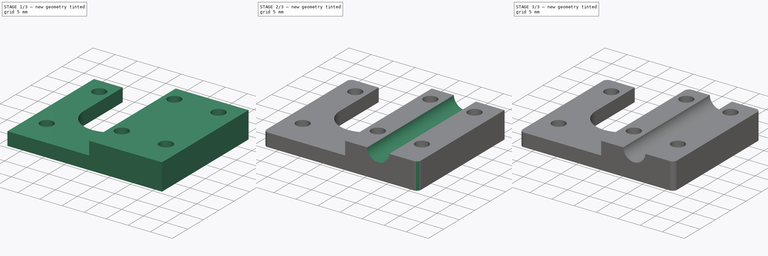
[diagram: build sequence overview — one tinted view per stage of 3, left to right]
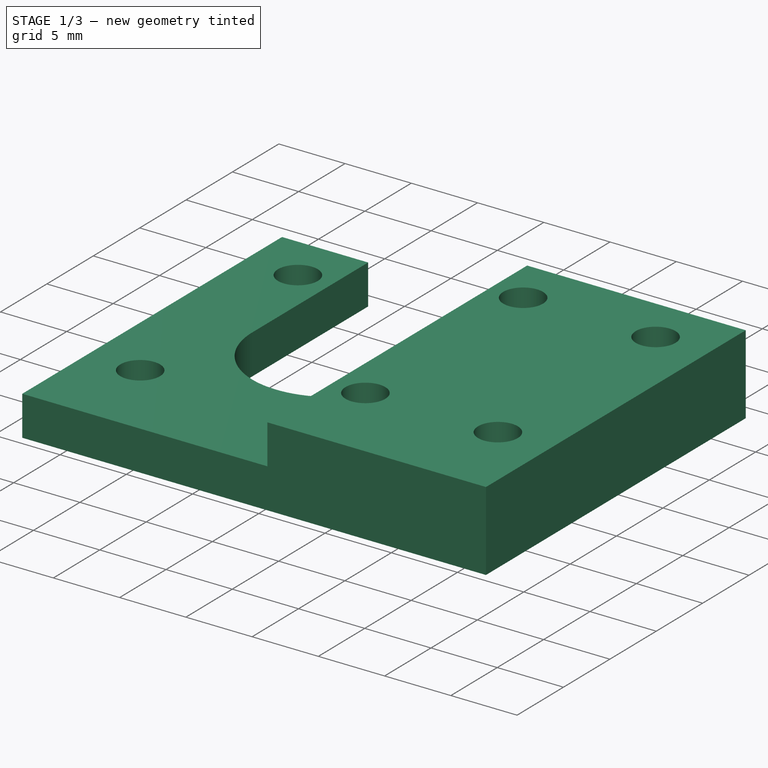
[diagram: stage 1 of 3 — iso view after this stage's code; geometry added in this stage tinted green]
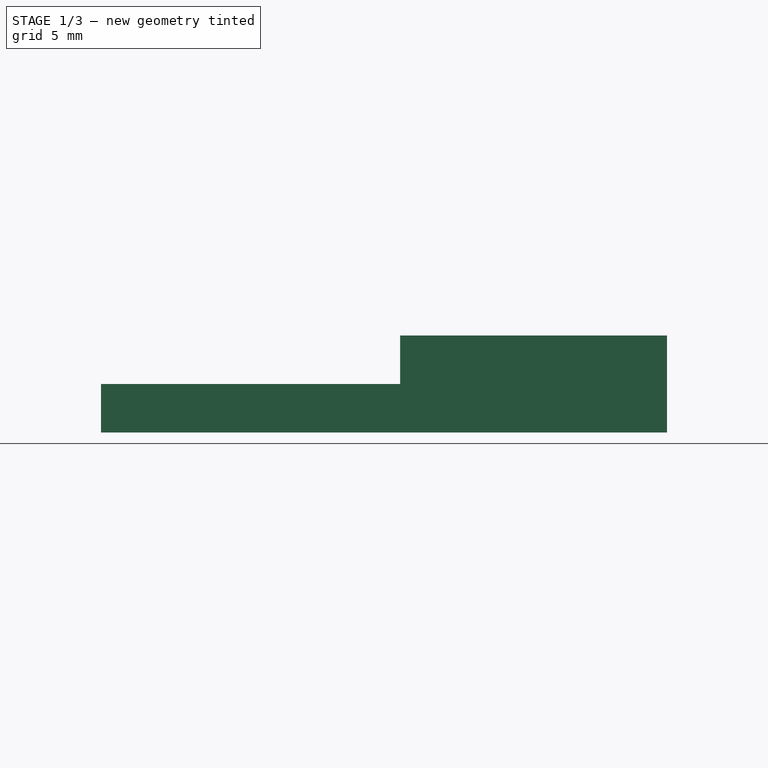
[diagram: stage 1 of 3 — front view after this stage's code; geometry added in this stage tinted green]
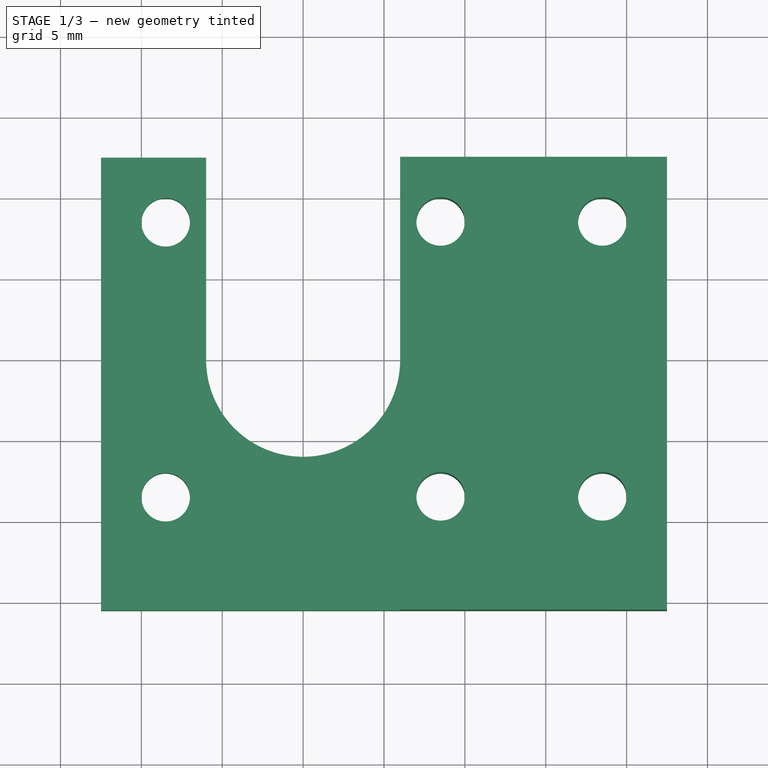
[diagram: stage 1 of 3 — top view after this stage's code; geometry added in this stage tinted green]
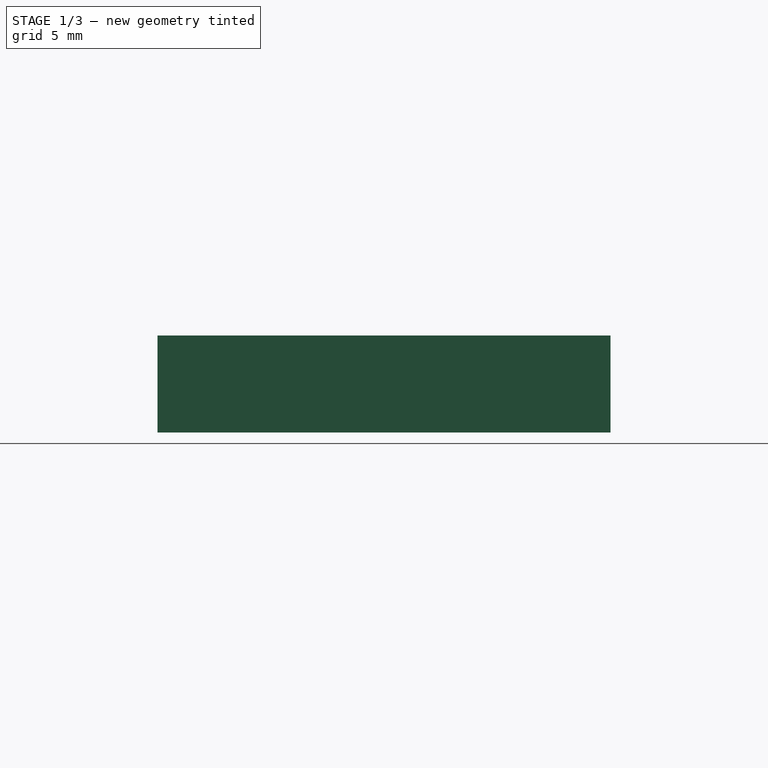
[diagram: stage 1 of 3 — right view after this stage's code; geometry added in this stage tinted green]
FCSTD DOCUMENT  (FreeCAD 0.19R24276 (Git))
Label: Servo_knife_opora_down
License: All rights reserved
LicenseURL: http://en.wikipedia.org/wiki/All_rights_reserved
objects: PartDesign::Fillet×4, Sketcher::SketchObject×3, PartDesign::Pad×2, PartDesign::Pocket×1, PartDesign::Body×1
note: 18 computed .brp shape members not serialized (recipe doc carries the construction recipe); baked Part::Feature solids carry a one-line shape summary decoded from their .brp

FEATURE [Sketcher::SketchObject] Sketch
  FullyConstrained = false
  MapMode = 5
  Support = -> [XY_Plane]
  sketch-geometry (34):
    g0: LineSegment StartX=-12.5 StartY=12.5 StartZ=0 EndX=12.5 EndY=12.5 EndZ=0
    g1: LineSegment StartX=12.5 StartY=12.5 StartZ=0 EndX=12.5 EndY=-12.5 EndZ=0
    g2: LineSegment StartX=12.5 StartY=-12.5 StartZ=0 EndX=-12.5 EndY=-12.5 EndZ=0
    g3: LineSegment StartX=-12.5 StartY=-12.5 StartZ=0 EndX=-12.5 EndY=12.5 EndZ=0
    g4: LineSegment StartX=8.5 StartY=8.5 StartZ=0 EndX=-8.5 EndY=8.5 EndZ=0
    g5: LineSegment StartX=-8.5 StartY=8.5 StartZ=0 EndX=-8.5 EndY=-8.5 EndZ=0
    g6: LineSegment StartX=-8.5 StartY=-8.5 StartZ=0 EndX=8.5 EndY=-8.5 EndZ=0
    g7: LineSegment StartX=8.5 StartY=-8.5 StartZ=0 EndX=8.5 EndY=8.5 EndZ=0
    g8: Circle CenterX=0 CenterY=0 CenterZ=0 NormalX=0 NormalY=0 NormalZ=1 AngleXU=0 Radius=12.0208
    g9: Circle CenterX=-8.5 CenterY=-8.5 CenterZ=0 NormalX=0 NormalY=0 NormalZ=1 AngleXU=0 Radius=1.5
    g10: Circle CenterX=8.5 CenterY=-8.5 CenterZ=0 NormalX=0 NormalY=0 NormalZ=1 AngleXU=0 Radius=1.5
    g11: Circle CenterX=-8.5 CenterY=8.5 CenterZ=0 NormalX=0 NormalY=0 NormalZ=1 AngleXU=0 Radius=1.5
    g12: Circle CenterX=8.5 CenterY=8.5 CenterZ=0 NormalX=0 NormalY=0 NormalZ=1 AngleXU=0 Radius=1.5
    g13: LineSegment StartX=9 StartY=29.1309 StartZ=0 EndX=9 EndY=-23.5772 EndZ=0
    g14: Circle CenterX=0 CenterY=0 CenterZ=0 NormalX=0 NormalY=0 NormalZ=1 AngleXU=0 Radius=4
    g15: ArcOfCircle CenterX=0 CenterY=0 CenterZ=0 NormalX=0 NormalY=0 NormalZ=1 AngleXU=0 Radius=6 StartAngle=3.14159 EndAngle=6.28319
    g16: LineSegment StartX=12.5 StartY=-12.5 StartZ=0 EndX=22.5 EndY=-12.5 EndZ=0
    g17: LineSegment StartX=22.5 StartY=-12.5 StartZ=0 EndX=22.5 EndY=12.5 EndZ=0
    g18: LineSegment StartX=12.5 StartY=12.5 StartZ=0 EndX=22.5 EndY=12.5 EndZ=0
    g19: LineSegment StartX=-12.5 StartY=-12.5 StartZ=0 EndX=22.5 EndY=-12.5 EndZ=0
    g20: LineSegment StartX=6 StartY=-1.5e-15 StartZ=0 EndX=6 EndY=12.5 EndZ=0
    g21: LineSegment StartX=6 StartY=12.5 StartZ=0 EndX=22.5 EndY=12.5 EndZ=0
    g22: LineSegment StartX=-6 StartY=12.5 StartZ=0 EndX=-12.5 EndY=12.5 EndZ=0
    g23: LineSegment StartX=0 StartY=-1.5e-15 StartZ=0 EndX=6 EndY=-1.5e-15 EndZ=0
    g24: LineSegment StartX=0 StartY=-1.5e-15 StartZ=0 EndX=-6 EndY=-1.5e-15 EndZ=0
    g25: LineSegment StartX=-6 StartY=12.5 StartZ=0 EndX=-6 EndY=-1.8e-15 EndZ=0
    g26: LineSegment StartX=-12.5 StartY=-12.5 StartZ=0 EndX=-12.5 EndY=-15.5 EndZ=0
    g27: LineSegment StartX=-12.5 StartY=-15.5 StartZ=0 EndX=22.5 EndY=-15.5 EndZ=0
    g28: LineSegment StartX=22.5 StartY=-12.5 StartZ=0 EndX=22.5 EndY=-15.5 EndZ=0
    g29: LineSegment StartX=-12.5 StartY=12.5 StartZ=0 EndX=-12.5 EndY=-15.5 EndZ=0
    g30: LineSegment StartX=22.5 StartY=12.5 StartZ=0 EndX=22.5 EndY=-15.5 EndZ=0
    g31: LineSegment StartX=-12.5 StartY=-15.5 StartZ=0 EndX=22.5 EndY=-15.5 EndZ=0
    g32: Circle CenterX=18.5 CenterY=8.5 CenterZ=0 NormalX=0 NormalY=0 NormalZ=1 AngleXU=0 Radius=1.5
    g33: Circle CenterX=18.5 CenterY=-8.5 CenterZ=0 NormalX=0 NormalY=0 NormalZ=1 AngleXU=0 Radius=1.5
  constraints (85):
    c: Coincident(g0,g1)
    c: Coincident(g1,g2)
    c: Coincident(g2,g3)
    c: Coincident(g3,g0)
    c: Horizontal(g0)
    c: Horizontal(g2)
    c: Vertical(g1)
    c: Vertical(g3)
    c: DistanceX(g0,g0) = 25
    c: Equal(g3,g0)
    c: Symmetric(g0,g1,g-1)
    c: Coincident(g4,g5)
    c: Coincident(g5,g6)
    c: Coincident(g6,g7)
    c: Coincident(g7,g4)
    c: Equal(g4,g5)
    c: Equal(g4,g6)
    c: Equal(g4,g7)
    c: PointOnObject(g4,g8)
    c: PointOnObject(g5,g8)
    c: PointOnObject(g6,g8)
    c: PointOnObject(g7,g8)
    c: Coincident(g8,g-1)
    c: Horizontal(g4)
    c: DistanceX(g6,g6) = 17
    c: Coincident(g9,g5)
    c: Coincident(g10,g6)
    c: Coincident(g11,g4)
    c: Coincident(g12,g4)
    c: Diameter(g12) = 3
    c: Equal(g12,g10)
    c: Equal(g12,g9)
    c: Equal(g12,g11)
    c: Vertical(g13)
    c: DistanceX(g-1,g13) = 9
    c: Coincident(g14,g-1)
    c: Diameter(g14) = 8
    c: Coincident(g15,g-1)
    c: Diameter(g15) = 12
    c: Coincident(g16,g1)
    c: Horizontal(g16)
    c: Coincident(g17,g16)
    c: Vertical(g17)
    c: Coincident(g18,g0)
    c: Horizontal(g18)
    c: Coincident(g17,g18)
    c: DistanceX(g16,g16) = 10
    c: Coincident(g19,g2)
    c: Vertical(g20)
    c: PointOnObject(g20,g0)
    c: PointOnObject(g22,g0)
    c: Coincident(g21,g20)
    c: Coincident(g22,g0)
    c: Coincident(g23,g-1)
    c: Horizontal(g23)
    c: Coincident(g20,g23)
    c: Coincident(g24,g23)
    c: Horizontal(g24)
    c: PointOnObject(g24,g15)
    c: Coincident(g25,g22)
    c: Coincident(g25,g24)
    c: Tangent(g15,g25) = -1.5708
    c: Coincident(g15,g20)
    c: Coincident(g26,g19)
    c: Vertical(g26)
    c: Coincident(g27,g26)
    c: Horizontal(g27)
    c: Coincident(g28,g19)
    c: Coincident(g28,g27)
    c: Vertical(g28)
    c: DistanceY(g28,g28) = 3
    c: Coincident(g29,g22)
    c: Coincident(g30,g21)
    c: Coincident(g30,g27)
    c: Coincident(g29,g26)
    c: Coincident(g19,g16)
    c: Coincident(g21,g17)
    c: Coincident(g31,g29)
    c: Coincident(g31,g30)
    c: Horizontal(g10,g33)
    c: Horizontal(g12,g32)
    c: Vertical(g33,g32)
    c: Equal(g12,g32)
    c: Equal(g32,g33)
    c: DistanceX(g33,g16) = 4
FEATURE [Sketcher::SketchObject] Sketch001
  FullyConstrained = false
  MapMode = 5
  Placement = pos=(0,0,3) rot=(0,0,1;0rad)
  sketch-geometry (13):
    g0: LineSegment StartX=11 StartY=13.562 StartZ=0 EndX=16 EndY=13.562 EndZ=0
    g1: LineSegment StartX=16 StartY=13.562 StartZ=0 EndX=16 EndY=-15.8235 EndZ=0
    g2: LineSegment StartX=16 StartY=-15.8235 StartZ=0 EndX=11 EndY=-15.8235 EndZ=0
    g3: LineSegment StartX=11 StartY=-15.8235 StartZ=0 EndX=11 EndY=13.562 EndZ=0
    g4: LineSegment StartX=13.5 StartY=13.562 StartZ=0 EndX=13.5 EndY=-18.9488 EndZ=0
    g5: LineSegment StartX=6 StartY=12.5 StartZ=0 EndX=22.5 EndY=12.5 EndZ=0
    g6: LineSegment StartX=22.5 StartY=12.5 StartZ=0 EndX=22.5 EndY=-15.5 EndZ=0
    g7: LineSegment StartX=22.5 StartY=-15.5 StartZ=0 EndX=6 EndY=-15.5 EndZ=0
    g8: LineSegment StartX=6 StartY=-15.5 StartZ=0 EndX=6 EndY=12.5 EndZ=0
    g9: Circle CenterX=8.5 CenterY=8.5 CenterZ=0 NormalX=0 NormalY=0 NormalZ=1 AngleXU=0 Radius=1.5
    g10: Circle CenterX=18.5 CenterY=8.5 CenterZ=0 NormalX=0 NormalY=0 NormalZ=1 AngleXU=0 Radius=1.5
    g11: Circle CenterX=18.5 CenterY=-8.5 CenterZ=0 NormalX=0 NormalY=0 NormalZ=1 AngleXU=0 Radius=1.5
    g12: Circle CenterX=8.5 CenterY=-8.5 CenterZ=0 NormalX=0 NormalY=0 NormalZ=1 AngleXU=0 Radius=1.5
  constraints (36):
    c: Coincident(g0,g1)
    c: Coincident(g1,g2)
    c: Coincident(g2,g3)
    c: Coincident(g3,g0)
    c: Horizontal(g0)
    c: Horizontal(g2)
    c: Vertical(g1)
    c: Vertical(g3)
    c: Vertical(g4)
    c: Symmetric(g0,g0,g4)
    c: DistanceX(g0,g0) = 5
    c: DistanceX(g-1,g4) = 13.5
    c: Coincident(g5,g6)
    c: Coincident(g6,g7)
    c: Coincident(g7,g8)
    c: Coincident(g8,g5)
    c: Horizontal(g5)
    c: Horizontal(g7)
    c: Vertical(g6)
    c: Vertical(g8)
    c: DistanceX(g-1,g7) = 6
    c: DistanceX(g-1,g5) = 22.5
    c: DistanceY(g6,g6) = 28
    c: DistanceY(g-1,g5) = 12.5
    c: Horizontal(g12,g11)
    c: Horizontal(g9,g10)
    c: Vertical(g9,g12)
    c: Vertical(g10,g11)
    c: Equal(g9,g10)
    c: Equal(g10,g11)
    c: Equal(g11,g12)
    c: Diameter(g11) = 3
    c: DistanceX(g-1,g9) = 8.5
    c: DistanceX(g9,g10) = 10
    c: DistanceY(g9,g5) = 4
    c: DistanceY(g12,g9) = 17
FEATURE [PartDesign::Pad] Pad
  Direction = (1,1,1)
  Length = 3
  Length2 = 100
  Profile = -> Sketch
  Type = 0
FEATURE [PartDesign::Pad] Pad001
  BaseFeature = -> Pad
  Direction = (1,1,1)
  Length = 3
  Length2 = 100
  Profile = -> Sketch001
  Type = 0
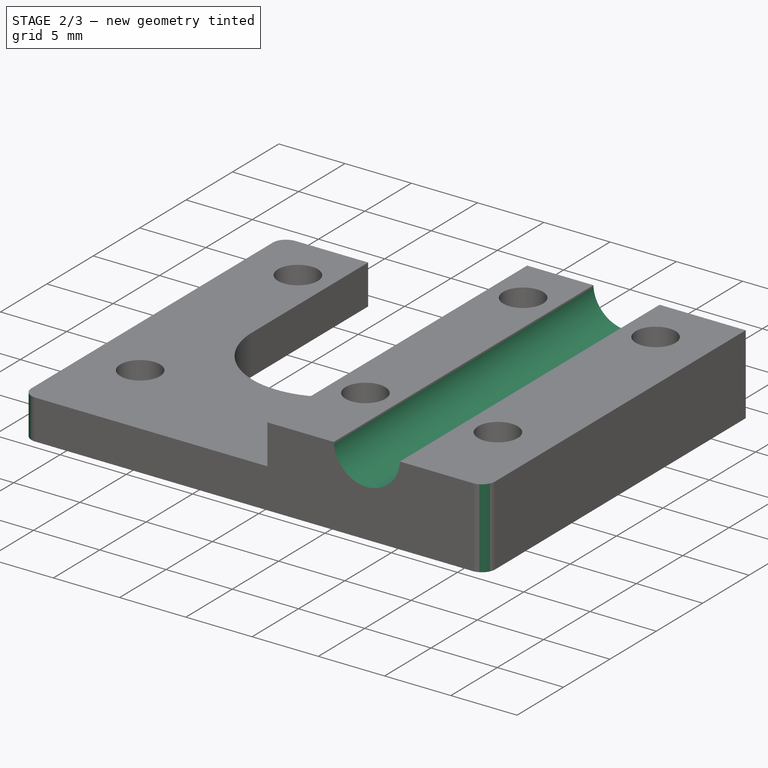
[diagram: stage 2 of 3 — iso view after this stage's code; geometry added in this stage tinted green]
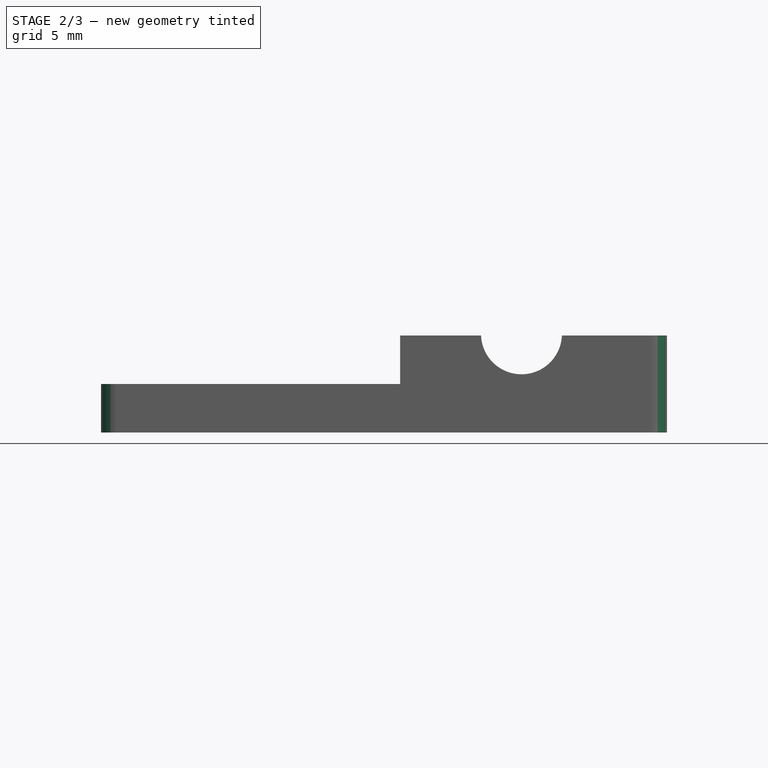
[diagram: stage 2 of 3 — front view after this stage's code; geometry added in this stage tinted green]
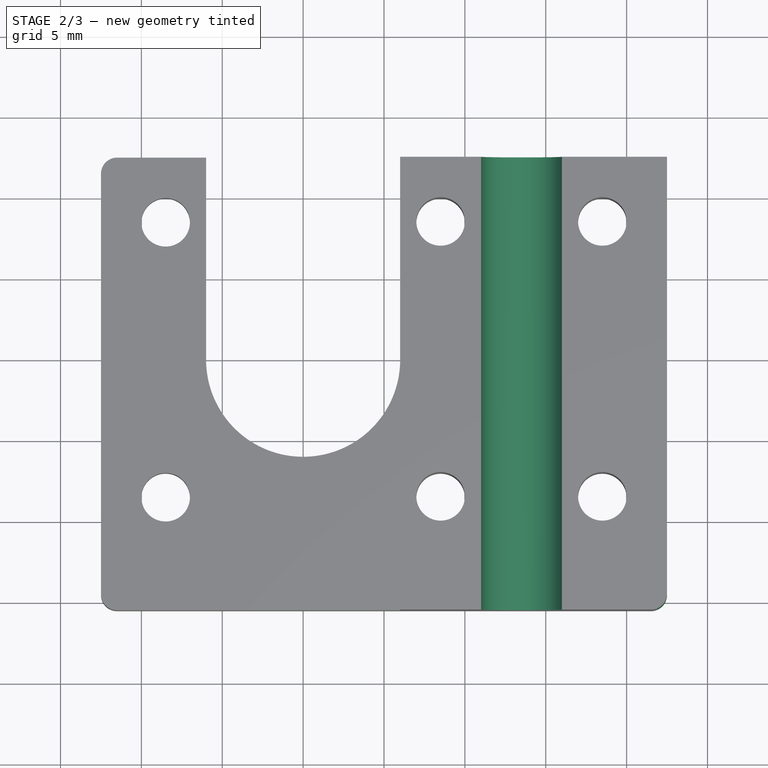
[diagram: stage 2 of 3 — top view after this stage's code; geometry added in this stage tinted green]
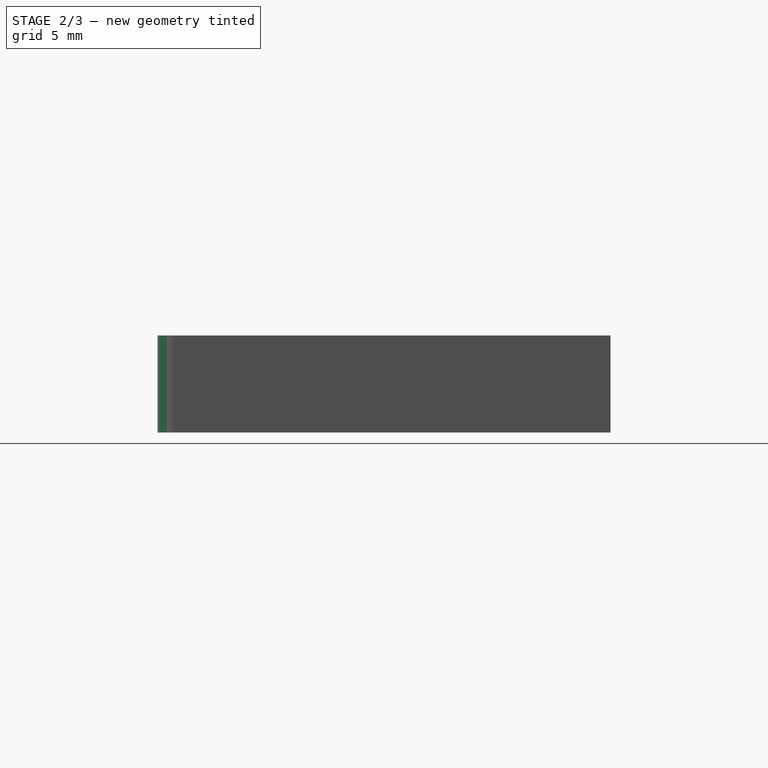
[diagram: stage 2 of 3 — right view after this stage's code; geometry added in this stage tinted green]
FEATURE [Sketcher::SketchObject] Sketch002
  FullyConstrained = false
  MapMode = 5
  Placement = pos=(0,-15.5,0) rot=(1,0,0;1.5708rad)
  Support = -> [Pad001]
  sketch-geometry (2):
    g0: LineSegment StartX=13.5 StartY=6.1 StartZ=0 EndX=13.5 EndY=22.0259 EndZ=0
    g1: Circle CenterX=13.5 CenterY=6.1 CenterZ=0 NormalX=0 NormalY=0 NormalZ=1 AngleXU=0 Radius=2.5
  constraints (5):
    c: Vertical(g0)
    c: DistanceX(g-1,g0) = 13.5
    c: Coincident(g1,g0)
    c: Diameter(g1) = 5
    c: DistanceY(g-1,g0) = 6.1
FEATURE [PartDesign::Pocket] Pocket
  BaseFeature = -> Pad001
  Length = 5
  Length2 = 100
  Profile = -> Sketch002
  Type = 1
FEATURE [PartDesign::Fillet] Fillet
  Base = -> Pocket [Edge27,Edge32,Edge52]
  BaseFeature = -> Pocket
  Radius = 1
  SupportTransform = false
FEATURE [PartDesign::Fillet] Fillet001
  Base = -> Fillet [Edge33]
  BaseFeature = -> Fillet
  Radius = 1
  SupportTransform = false
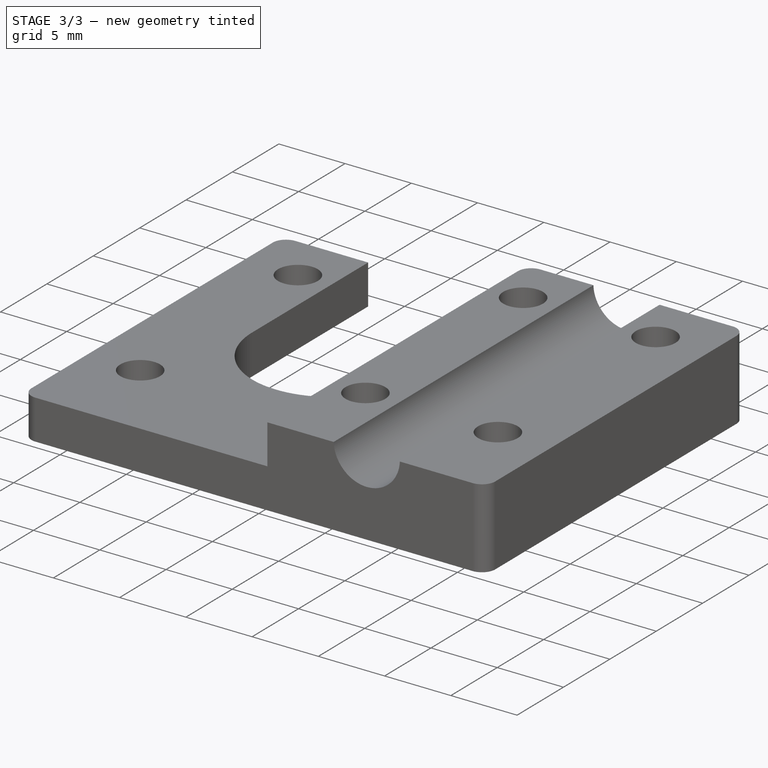
[diagram: stage 3 of 3 — iso view after this stage's code; geometry added in this stage tinted green]
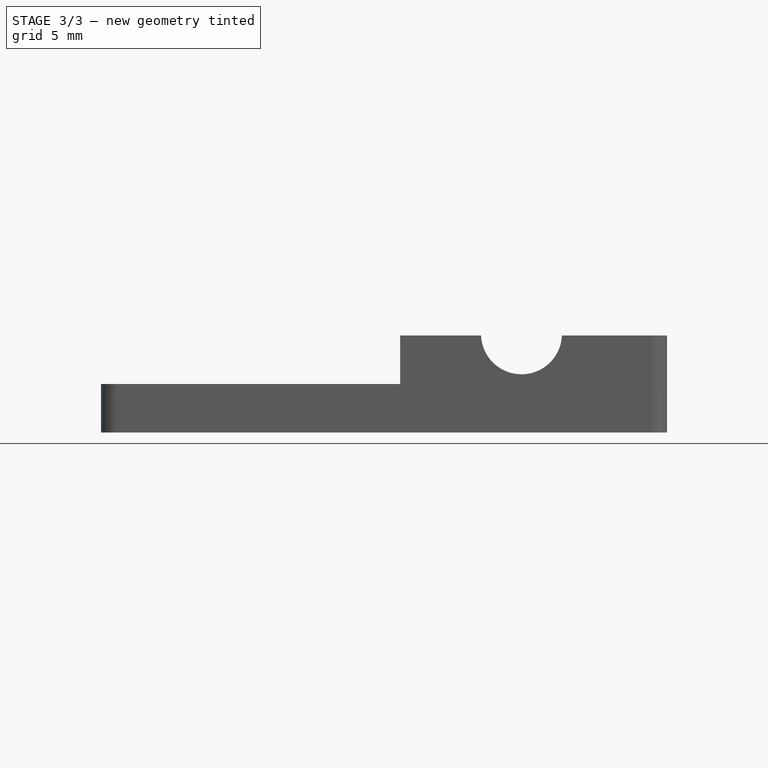
[diagram: stage 3 of 3 — front view after this stage's code; geometry added in this stage tinted green]
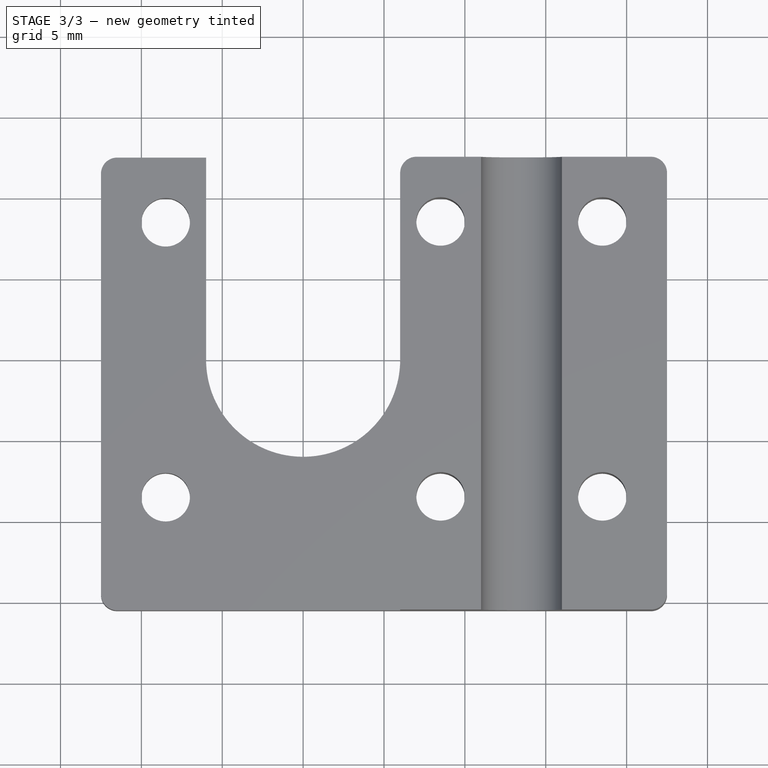
[diagram: stage 3 of 3 — top view after this stage's code; geometry added in this stage tinted green]
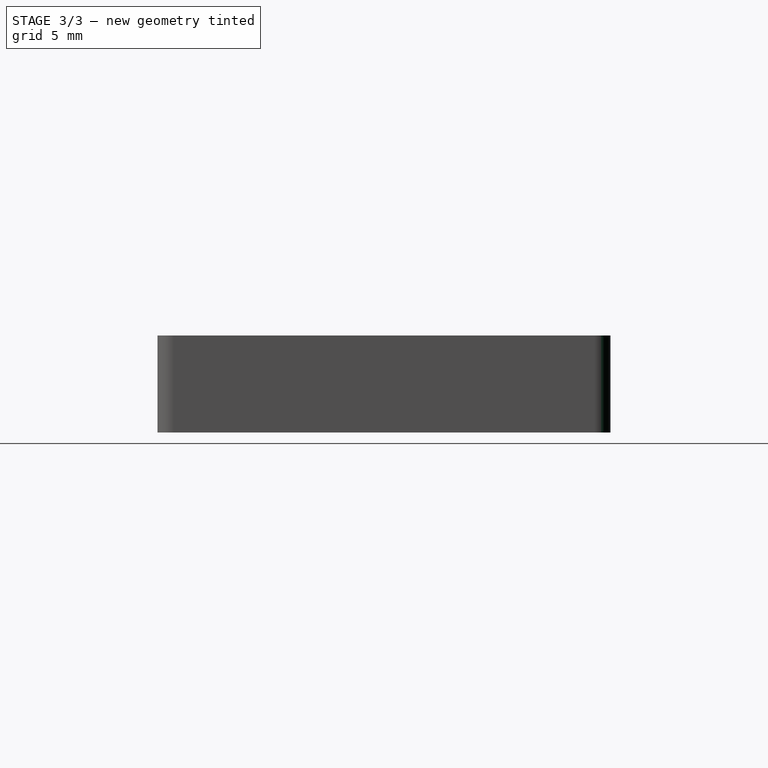
[diagram: stage 3 of 3 — right view after this stage's code; geometry added in this stage tinted green]
FEATURE [PartDesign::Fillet] Fillet002
  Base = -> Fillet001 [Edge63,Edge38]
  BaseFeature = -> Fillet001
  Radius = 1
  SupportTransform = false
FEATURE [PartDesign::Fillet] Fillet003
  Base = -> Fillet002 [Edge62,Edge26]
  BaseFeature = -> Fillet002
  Radius = 1
  SupportTransform = false
FEATURE [PartDesign::Body] Body
  Group = -> [Sketch,Pad,Sketch001,Pad001,Sketch002,Pocket,Fillet,Fillet001,Fillet002,Fillet003]
  Origin = -> Origin
  Tip = -> Fillet003
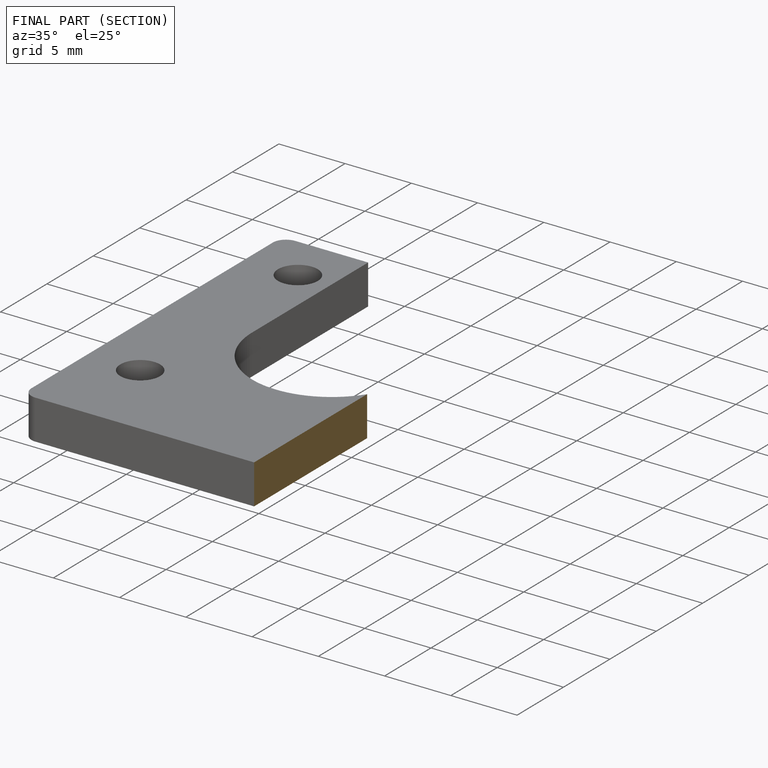
[diagram: finished part — half-section view (interior)]
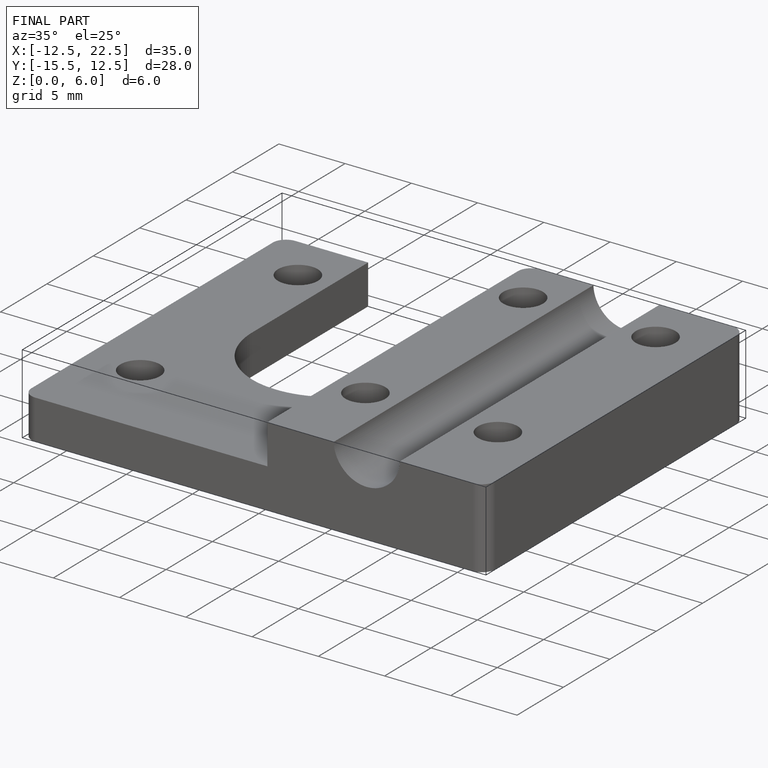
[diagram: finished part — iso view with bounding-box wireframe]
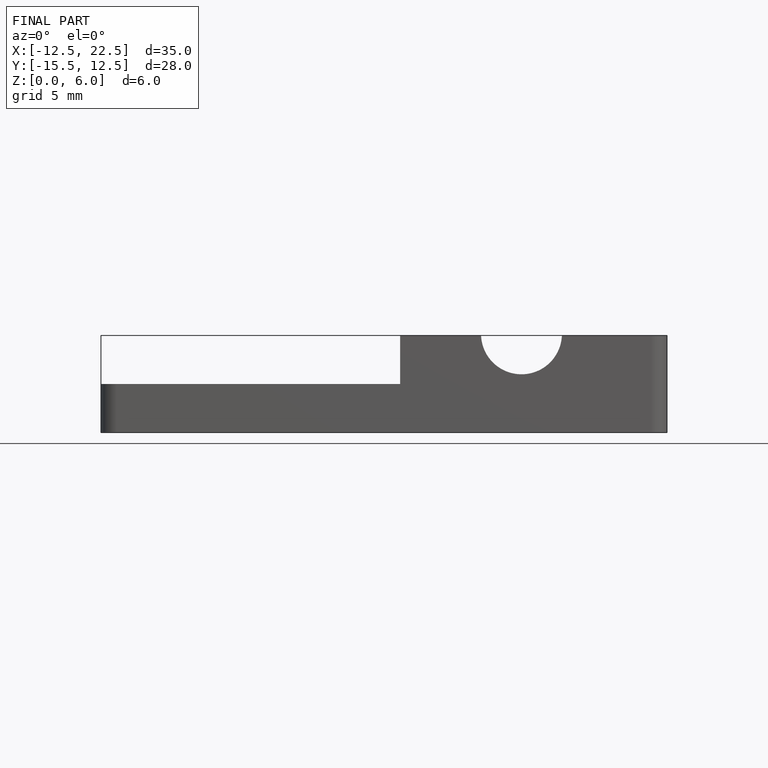
[diagram: finished part — front view with bounding-box wireframe]
